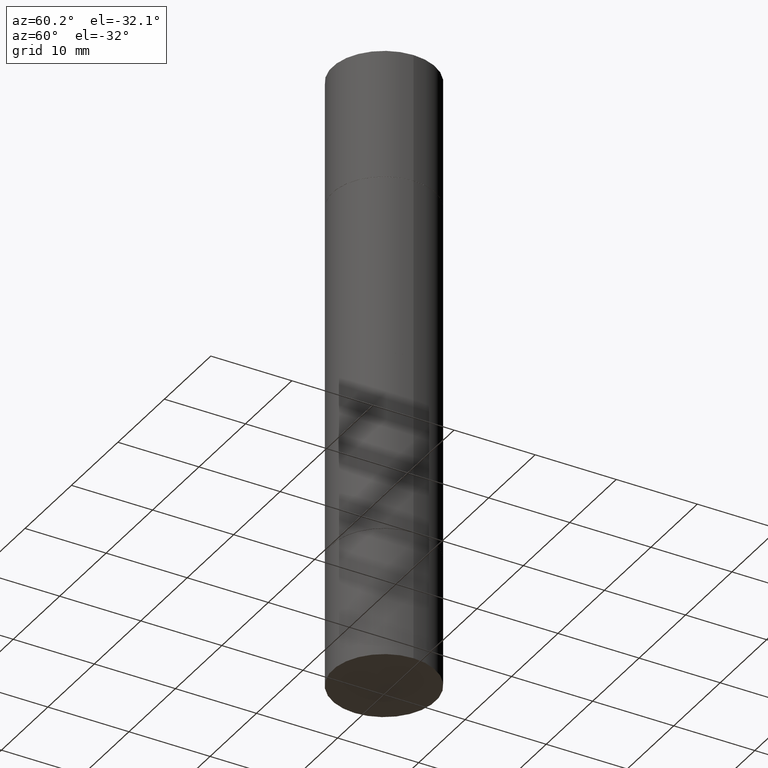
[diagram: clean part render]
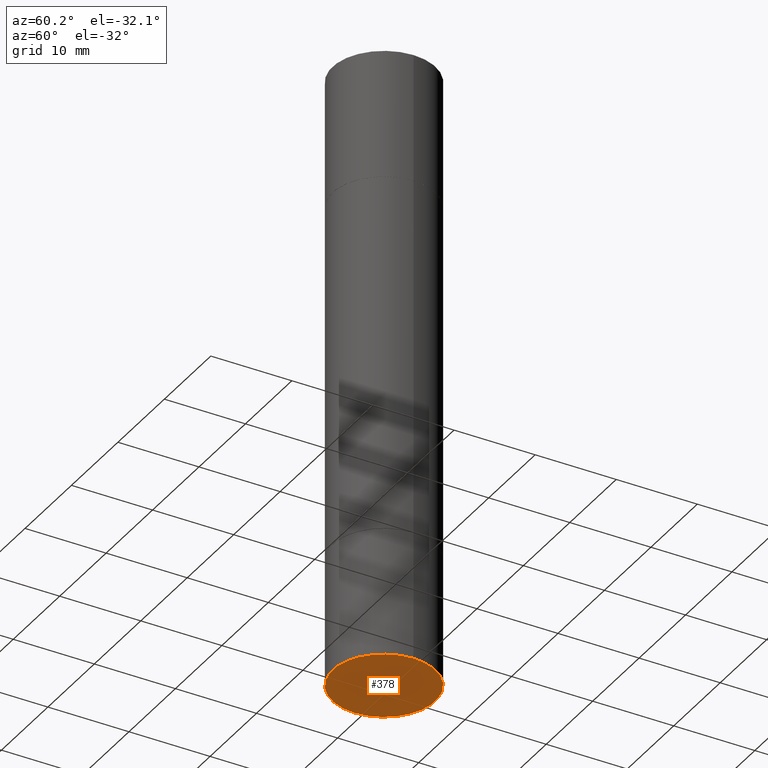
[diagram: same view with one face highlighted and labeled with its STEP entity id]
A machine part, auxiliary view. The second image highlights one B-rep face of the part: STEP entity #378.
In plain terms, the highlighted planar face has unit normal (0, -0, -1).
Its self-contained STEP definition (entity closure, byte-faithful):
#9 = AXIS2_PLACEMENT_3D ( 'NONE', #678, #269, #423 ) ;
#21 = CIRCLE ( 'NONE', #540, 0.2500000000000000000 ) ;
#95 = VERTEX_POINT ( 'NONE', #546 ) ;
#126 = EDGE_CURVE ( 'NONE', #95, #662, #21, .T. ) ;
#131 = ORIENTED_EDGE ( 'NONE', *, *, #653, .F. ) ;
#135 = CARTESIAN_POINT ( 'NONE',  ( 0.2500000000000000000, -1.222018468595100303E-14, -3.000000000000000444 ) ) ;
#154 = CIRCLE ( 'NONE', #318, 0.2500000000000000000 ) ;
#215 = PLANE ( 'NONE',  #9 ) ;
#269 = DIRECTION ( 'NONE',  ( 2.438088387897960049E-29, -3.491481338843145188E-15, -1.000000000000000000 ) ) ;
#318 = AXIS2_PLACEMENT_3D ( 'NONE', #566, #403, #606 ) ;
#346 = ORIENTED_EDGE ( 'NONE', *, *, #126, .F. ) ;
#378 = ADVANCED_FACE ( 'NONE', ( #581 ), #215, .T. ) ;
#403 = DIRECTION ( 'NONE',  ( -2.445468806185136597E-29, 3.491481338843145583E-15, 1.000000000000000000 ) ) ;
#423 = DIRECTION ( 'NONE',  ( -1.000000000000000000, 6.982962677686265922E-15, -4.876176775795935793E-29 ) ) ;
#456 = DIRECTION ( 'NONE',  ( 1.000000000000000000, -6.982962677686262766E-15, 0.000000000000000000 ) ) ;
#473 = EDGE_LOOP ( 'NONE', ( #131, #346 ) ) ;
#509 = CARTESIAN_POINT ( 'NONE',  ( 7.336406418555409790E-29, -1.047444401652943635E-14, -3.000000000000000444 ) ) ;
#540 = AXIS2_PLACEMENT_3D ( 'NONE', #509, #598, #456 ) ;
#546 = CARTESIAN_POINT ( 'NONE',  ( -0.2500000000000000000, -7.606999258740704349E-15, -3.000000000000000444 ) ) ;
#566 = CARTESIAN_POINT ( 'NONE',  ( 7.336406418555409790E-29, -1.047444401652943635E-14, -3.000000000000000444 ) ) ;
#581 = FACE_OUTER_BOUND ( 'NONE', #473, .T. ) ;
#598 = DIRECTION ( 'NONE',  ( -2.445468806185136597E-29, 3.491481338843145583E-15, 1.000000000000000000 ) ) ;
#606 = DIRECTION ( 'NONE',  ( 1.000000000000000000, -6.982962677686262766E-15, 0.000000000000000000 ) ) ;
#653 = EDGE_CURVE ( 'NONE', #662, #95, #154, .T. ) ;
#662 = VERTEX_POINT ( 'NONE', #135 ) ;
#678 = CARTESIAN_POINT ( 'NONE',  ( 1.745740669421639647E-15, 0.2499999999999895084, -3.000000000000001332 ) ) ;